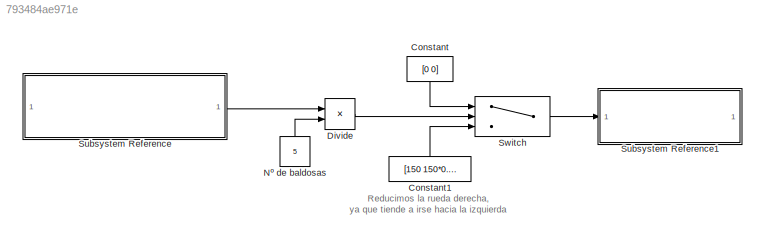
MODEL slx_793484ae971e
KIND model
CONFIG AbsTol = auto
CONFIG EnableMultiTasking = on
CONFIG FixedStep = 0.01
CONFIG MaxStep = auto
CONFIG MinStep = auto
CONFIG RelTol = 1e-3
CONFIG SampleTimeConstraint = Unconstrained
CONFIG SolverName = FixedStepAuto
CONFIG StartTime = 0.0
CONFIG StopTime = inf
BLOCK [Constant] Constant
  NameLocation = left
  Value = [0 0]
BLOCK [Constant] Constant1
  NameLocation = right
  Value = [150 150*0.973]
BLOCK [Product] Divide
  Inputs = */
BLOCK [Constant] Nº de baldosas
  Value = 5
BLOCK [SubSystem] Subsystem Reference
  ReferencedSubsystem = Sub_Encoders
BLOCK [SubSystem] Subsystem Reference1
  ReferencedSubsystem = Sub_Motores
BLOCK [Switch] Switch
  Criteria = u2 > Threshold
  InputSameDT = off
  SaturateOnIntegerOverflow = off
  Threshold = 0.41
ANNOTATION (root): Reducimos la rueda derecha, ya que tiende a irse hacia la izquierda
LINE Constant1:1 -> Switch:3
LINE Constant:1 -> Switch:1
LINE Divide:1 -> Switch:2
LINE Nº de baldosas:1 -> Divide:2
LINE Subsystem Reference:2 -> Divide:1
LINE Switch:1 -> Subsystem Reference1:1
